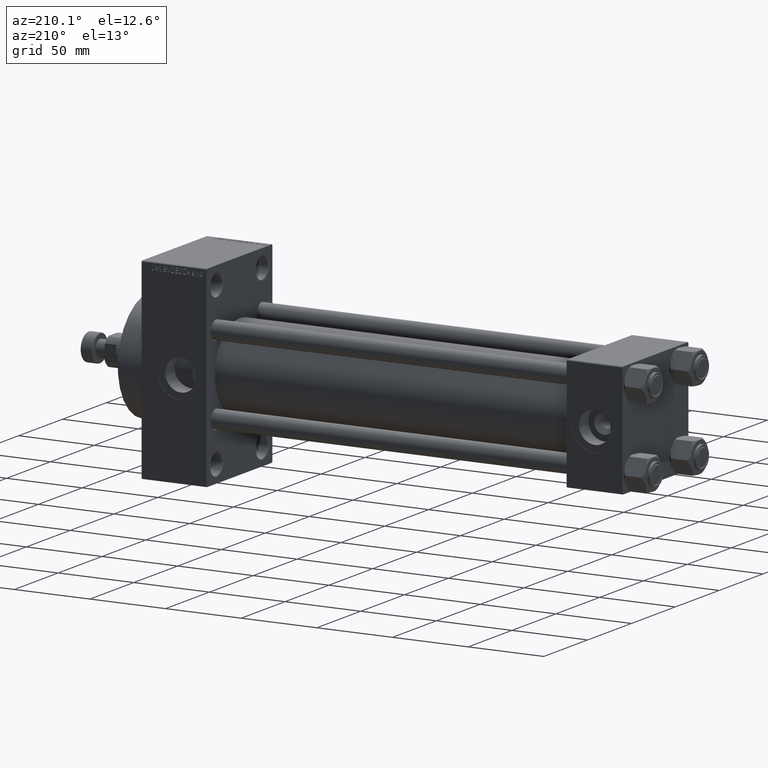
[diagram: clean part render]
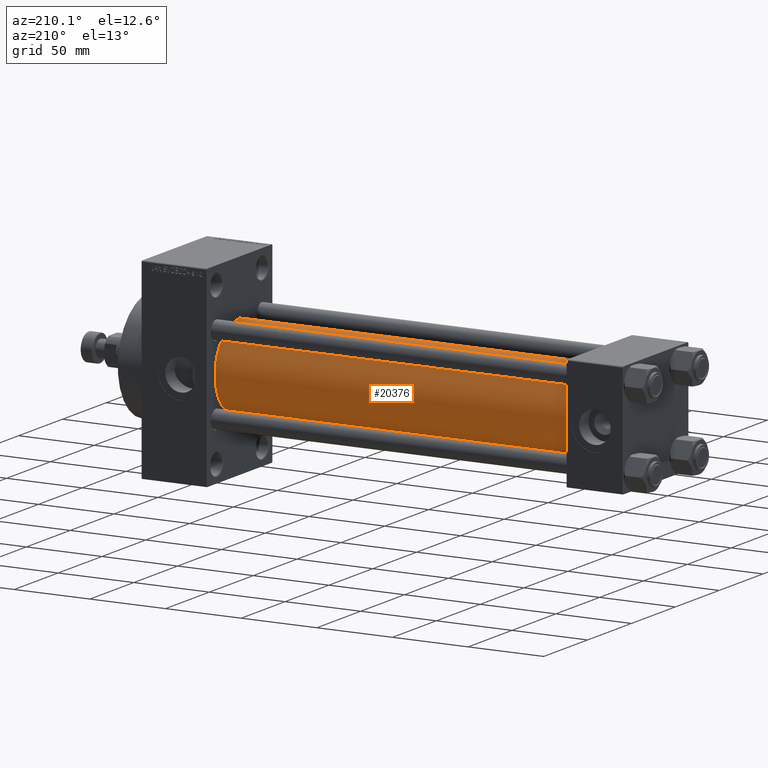
[diagram: same view with one face highlighted and labeled with its STEP entity id]
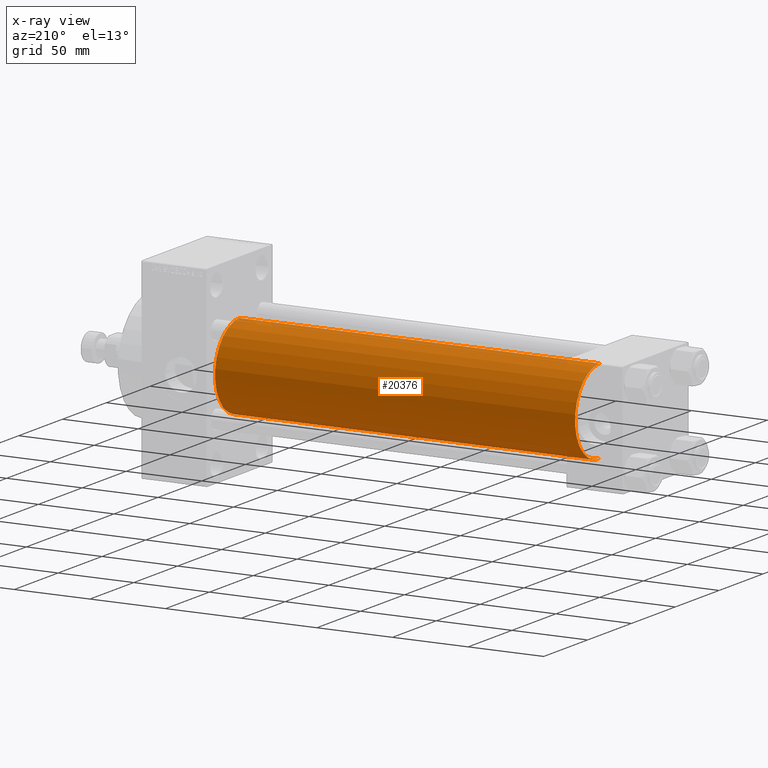
[diagram: x-ray of the same camera — body ghosted, the highlighted face saturated]
A machine part, auxiliary view. The second image highlights one B-rep face of the part: STEP entity #20376.
The next image is the same camera in x-ray: the body ghosted, the highlighted face saturated — about 0% of this face is hidden behind the body in this view.
In plain terms, the highlighted cylindrical surface (partial cylindrical patch) has radius 28 mm, axis along (-1, -0, -0).
Its self-contained STEP definition (entity closure, byte-faithful):
#346 = ORIENTED_EDGE ( 'NONE', *, *, #7851, .T. ) ;
#523 = VECTOR ( 'NONE', #31071, 1000.000000000000000 ) ;
#1264 = CARTESIAN_POINT ( 'NONE',  ( 274.9999999999999432, 8.269258236473784371E-16, -28.00000000000000000 ) ) ;
#2200 = FACE_OUTER_BOUND ( 'NONE', #39216, .T. ) ;
#2600 = AXIS2_PLACEMENT_3D ( 'NONE', #24295, #13696, #28617 ) ;
#3487 = ORIENTED_EDGE ( 'NONE', *, *, #42400, .F. ) ;
#3854 = VERTEX_POINT ( 'NONE', #17129 ) ;
#4799 = LINE ( 'NONE', #19294, #523 ) ;
#5986 = LINE ( 'NONE', #42640, #23684 ) ;
#6839 = ORIENTED_EDGE ( 'NONE', *, *, #25755, .T. ) ;
#7851 = EDGE_CURVE ( 'NONE', #37152, #3854, #5986, .T. ) ;
#9602 = DIRECTION ( 'NONE',  ( -1.000000000000000000, -0.000000000000000000, -0.000000000000000000 ) ) ;
#9677 = DIRECTION ( 'NONE',  ( -1.000000000000000000, -0.000000000000000000, -0.000000000000000000 ) ) ;
#11463 = VERTEX_POINT ( 'NONE', #42113 ) ;
#13696 = DIRECTION ( 'NONE',  ( 1.000000000000000000, 0.000000000000000000, 0.000000000000000000 ) ) ;
#16459 = AXIS2_PLACEMENT_3D ( 'NONE', #36349, #36817, #36578 ) ;
#17129 = CARTESIAN_POINT ( 'NONE',  ( 37.00000000000000711, 8.269258236473784371E-16, -28.00000000000000000 ) ) ;
#17428 = CARTESIAN_POINT ( 'NONE',  ( 274.9999999999999432, -2.602085213965210642E-15, 0.000000000000000000 ) ) ;
#19294 = CARTESIAN_POINT ( 'NONE',  ( 274.9999999999999432, -2.602085213965210642E-15, 28.00000000000000000 ) ) ;
#20148 = AXIS2_PLACEMENT_3D ( 'NONE', #17428, #9677, #24883 ) ;
#20376 = ADVANCED_FACE ( 'NONE', ( #2200 ), #46328, .T. ) ;
#21872 = CIRCLE ( 'NONE', #2600, 28.00000000000000000 ) ;
#23684 = VECTOR ( 'NONE', #9602, 1000.000000000000000 ) ;
#24295 = CARTESIAN_POINT ( 'NONE',  ( 274.9999999999999432, -2.602085213965210642E-15, 0.000000000000000000 ) ) ;
#24883 = DIRECTION ( 'NONE',  ( 0.000000000000000000, 0.000000000000000000, 1.000000000000000000 ) ) ;
#25697 = EDGE_CURVE ( 'NONE', #37152, #30142, #21872, .T. ) ;
#25755 = EDGE_CURVE ( 'NONE', #3854, #11463, #40235, .T. ) ;
#28617 = DIRECTION ( 'NONE',  ( 0.000000000000000000, 0.000000000000000000, -1.000000000000000000 ) ) ;
#30142 = VERTEX_POINT ( 'NONE', #45205 ) ;
#31071 = DIRECTION ( 'NONE',  ( -1.000000000000000000, -0.000000000000000000, -0.000000000000000000 ) ) ;
#32441 = ORIENTED_EDGE ( 'NONE', *, *, #25697, .F. ) ;
#36349 = CARTESIAN_POINT ( 'NONE',  ( 37.00000000000000711, -2.602085213965210642E-15, 0.000000000000000000 ) ) ;
#36578 = DIRECTION ( 'NONE',  ( 0.000000000000000000, 0.000000000000000000, 1.000000000000000000 ) ) ;
#36817 = DIRECTION ( 'NONE',  ( 1.000000000000000000, -0.000000000000000000, 0.000000000000000000 ) ) ;
#37152 = VERTEX_POINT ( 'NONE', #1264 ) ;
#39216 = EDGE_LOOP ( 'NONE', ( #32441, #346, #6839, #3487 ) ) ;
#40235 = CIRCLE ( 'NONE', #16459, 28.00000000000000000 ) ;
#42113 = CARTESIAN_POINT ( 'NONE',  ( 37.00000000000000711, -2.602085213965210642E-15, 28.00000000000000000 ) ) ;
#42400 = EDGE_CURVE ( 'NONE', #30142, #11463, #4799, .T. ) ;
#42640 = CARTESIAN_POINT ( 'NONE',  ( 274.9999999999999432, 8.269258236473784371E-16, -28.00000000000000000 ) ) ;
#45205 = CARTESIAN_POINT ( 'NONE',  ( 274.9999999999999432, -2.602085213965210642E-15, 28.00000000000000000 ) ) ;
#46328 = CYLINDRICAL_SURFACE ( 'NONE', #20148, 28.00000000000000000 ) ;